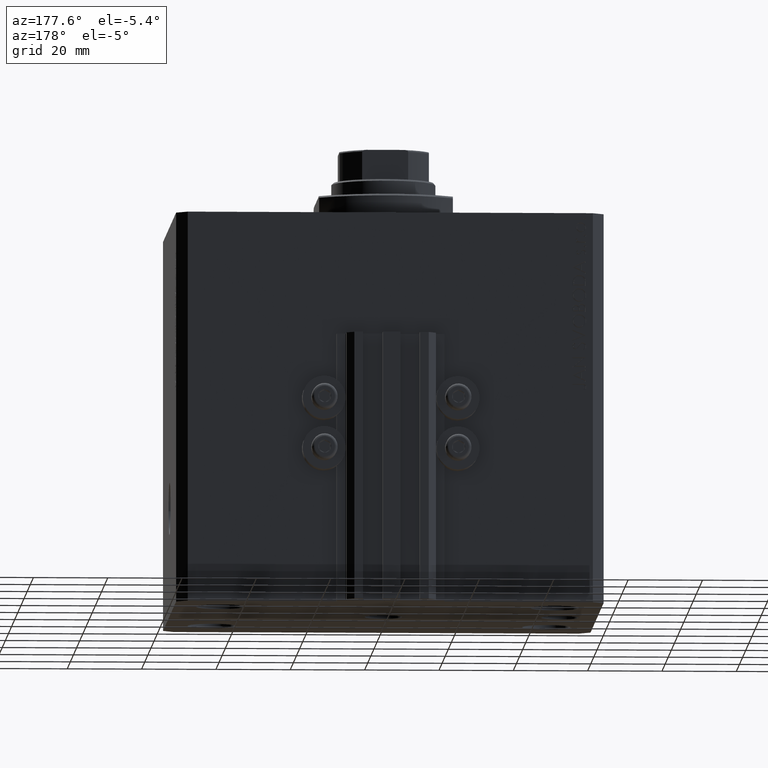
[diagram: clean part render]
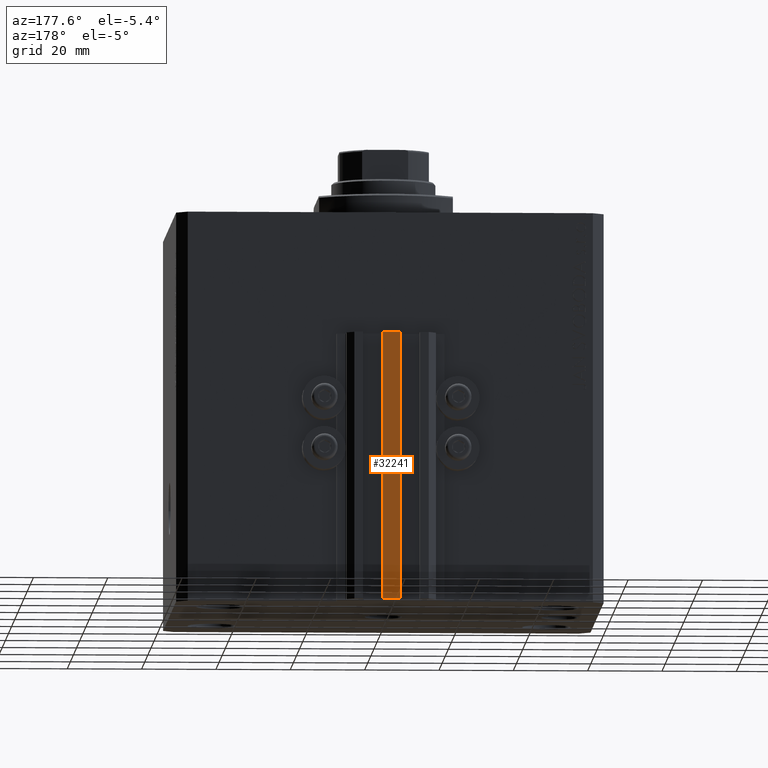
[diagram: same view with one face highlighted and labeled with its STEP entity id]
A machine part, auxiliary view. The second image highlights one B-rep face of the part: STEP entity #32241.
In plain terms, the highlighted planar face has unit normal (0, -1, 0).
Its self-contained STEP definition (entity closure, byte-faithful):
#812 = CARTESIAN_POINT ( 'NONE',  ( 2.349999999999999645, 53.00000000000000000, -105.0000000000000000 ) ) ;
#1367 = CARTESIAN_POINT ( 'NONE',  ( -2.350000000000003642, 53.00000000000000000, -33.00000000000000000 ) ) ;
#2313 = LINE ( 'NONE', #20037, #5606 ) ;
#3250 = EDGE_CURVE ( 'NONE', #6657, #27258, #19030, .T. ) ;
#4492 = CARTESIAN_POINT ( 'NONE',  ( -2.350000000000003642, 53.00000000000000000, -105.0000000000000000 ) ) ;
#5039 = CARTESIAN_POINT ( 'NONE',  ( -2.350000000000003642, 53.00000000000000000, -33.00000000000000000 ) ) ;
#5606 = VECTOR ( 'NONE', #24314, 1000.000000000000000 ) ;
#6657 = VERTEX_POINT ( 'NONE', #4492 ) ;
#8099 = VECTOR ( 'NONE', #12314, 1000.000000000000000 ) ;
#9201 = EDGE_LOOP ( 'NONE', ( #15893, #41419, #18610, #46660 ) ) ;
#12314 = DIRECTION ( 'NONE',  ( 0.000000000000000000, 0.000000000000000000, 1.000000000000000000 ) ) ;
#12953 = CARTESIAN_POINT ( 'NONE',  ( -2.350000000000003642, 53.00000000000000000, -105.0000000000000000 ) ) ;
#15893 = ORIENTED_EDGE ( 'NONE', *, *, #42644, .T. ) ;
#17503 = PLANE ( 'NONE',  #19749 ) ;
#18350 = EDGE_CURVE ( 'NONE', #6657, #20041, #2313, .T. ) ;
#18610 = ORIENTED_EDGE ( 'NONE', *, *, #18350, .F. ) ;
#19030 = LINE ( 'NONE', #33642, #22428 ) ;
#19749 = AXIS2_PLACEMENT_3D ( 'NONE', #12953, #27569, #32114 ) ;
#20037 = CARTESIAN_POINT ( 'NONE',  ( -2.350000000000003642, 53.00000000000000000, -105.0000000000000000 ) ) ;
#20041 = VERTEX_POINT ( 'NONE', #812 ) ;
#22428 = VECTOR ( 'NONE', #43729, 1000.000000000000000 ) ;
#23205 = LINE ( 'NONE', #5039, #29837 ) ;
#23416 = CARTESIAN_POINT ( 'NONE',  ( 2.349999999999999645, 53.00000000000000000, -33.00000000000000000 ) ) ;
#24314 = DIRECTION ( 'NONE',  ( 1.000000000000000000, 0.000000000000000000, 0.000000000000000000 ) ) ;
#27258 = VERTEX_POINT ( 'NONE', #1367 ) ;
#27569 = DIRECTION ( 'NONE',  ( 0.000000000000000000, -1.000000000000000000, 0.000000000000000000 ) ) ;
#29837 = VECTOR ( 'NONE', #38950, 1000.000000000000000 ) ;
#30082 = EDGE_CURVE ( 'NONE', #20041, #34897, #30531, .T. ) ;
#30531 = LINE ( 'NONE', #45136, #8099 ) ;
#31171 = FACE_OUTER_BOUND ( 'NONE', #9201, .T. ) ;
#32114 = DIRECTION ( 'NONE',  ( 0.000000000000000000, -0.000000000000000000, -1.000000000000000000 ) ) ;
#32241 = ADVANCED_FACE ( 'NONE', ( #31171 ), #17503, .F. ) ;
#33642 = CARTESIAN_POINT ( 'NONE',  ( -2.350000000000003642, 53.00000000000000000, -105.0000000000000000 ) ) ;
#34897 = VERTEX_POINT ( 'NONE', #23416 ) ;
#38950 = DIRECTION ( 'NONE',  ( 1.000000000000000000, 0.000000000000000000, 0.000000000000000000 ) ) ;
#41419 = ORIENTED_EDGE ( 'NONE', *, *, #30082, .F. ) ;
#42644 = EDGE_CURVE ( 'NONE', #27258, #34897, #23205, .T. ) ;
#43729 = DIRECTION ( 'NONE',  ( 0.000000000000000000, 0.000000000000000000, 1.000000000000000000 ) ) ;
#45136 = CARTESIAN_POINT ( 'NONE',  ( 2.349999999999999645, 53.00000000000000000, -105.0000000000000000 ) ) ;
#46660 = ORIENTED_EDGE ( 'NONE', *, *, #3250, .T. ) ;